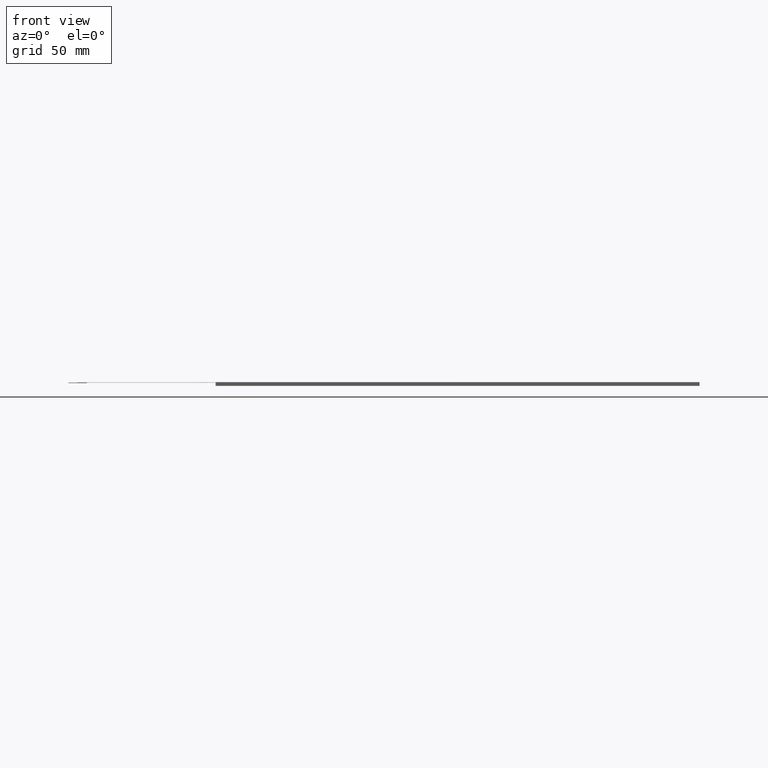
[diagram: clean part render]
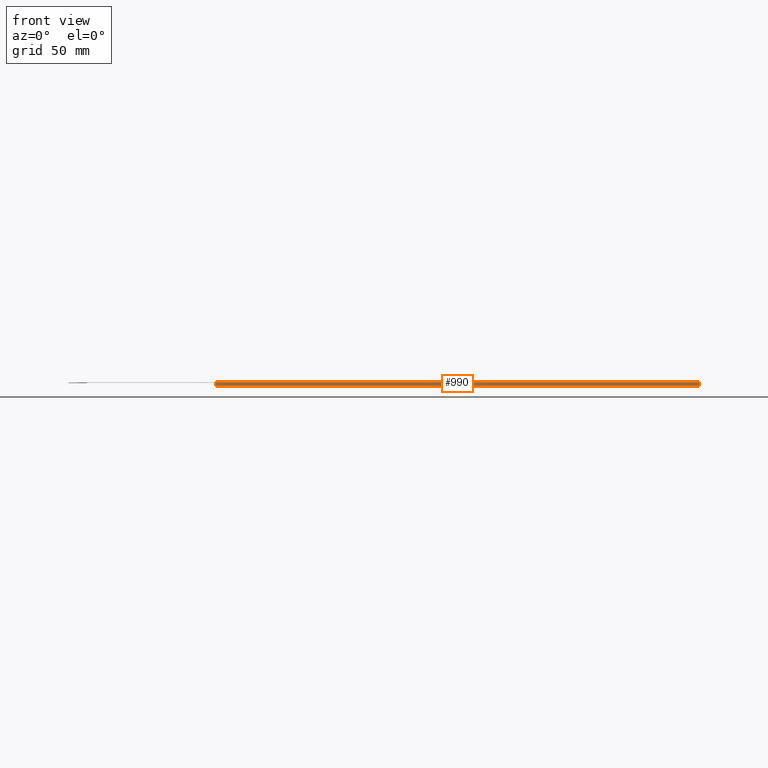
[diagram: same view with one face highlighted and labeled with its STEP entity id]
A machine part, front view. The second image highlights one B-rep face of the part: STEP entity #990.
In plain terms, the highlighted planar face has unit normal (0, -1, 0).
Its self-contained STEP definition (entity closure, byte-faithful):
#58=PLANE('',#1073);
#109=FACE_OUTER_BOUND('',#163,.T.);
#163=EDGE_LOOP('',(#918,#919,#920,#921));
#284=LINE('',#1594,#410);
#288=LINE('',#1601,#414);
#289=LINE('',#1604,#415);
#290=LINE('',#1605,#416);
#410=VECTOR('',#1310,10.);
#414=VECTOR('',#1316,10.);
#415=VECTOR('',#1319,10.);
#416=VECTOR('',#1320,10.);
#518=VERTEX_POINT('',#1591);
#519=VERTEX_POINT('',#1593);
#521=VERTEX_POINT('',#1599);
#522=VERTEX_POINT('',#1603);
#652=EDGE_CURVE('',#518,#519,#284,.T.);
#656=EDGE_CURVE('',#518,#521,#288,.T.);
#657=EDGE_CURVE('',#522,#521,#289,.T.);
#658=EDGE_CURVE('',#519,#522,#290,.T.);
#918=ORIENTED_EDGE('',*,*,#652,.F.);
#919=ORIENTED_EDGE('',*,*,#656,.T.);
#920=ORIENTED_EDGE('',*,*,#657,.F.);
#921=ORIENTED_EDGE('',*,*,#658,.F.);
#990=ADVANCED_FACE('',(#109),#58,.T.);
#1073=AXIS2_PLACEMENT_3D('',#1602,#1317,#1318);
#1310=DIRECTION('',(1.,1.35084170296597E-16,0.));
#1316=DIRECTION('',(0.,0.,-1.));
#1317=DIRECTION('center_axis',(1.35084170296597E-16,-1.,0.));
#1318=DIRECTION('ref_axis',(-1.,-1.35084170296597E-16,0.));
#1319=DIRECTION('',(-1.,-1.35084170296597E-16,0.));
#1320=DIRECTION('',(0.,0.,-1.));
#1591=CARTESIAN_POINT('',(-133.,-100.5,0.));
#1593=CARTESIAN_POINT('',(130.,-100.5,0.));
#1594=CARTESIAN_POINT('',(-133.,-100.5,0.));
#1599=CARTESIAN_POINT('',(-133.,-100.5,-2.1));
#1601=CARTESIAN_POINT('',(-133.,-100.5,0.));
#1602=CARTESIAN_POINT('Origin',(130.,-100.5,0.));
#1603=CARTESIAN_POINT('',(130.,-100.5,-2.1));
#1604=CARTESIAN_POINT('',(-133.,-100.5,-2.1));
#1605=CARTESIAN_POINT('',(130.,-100.5,0.));